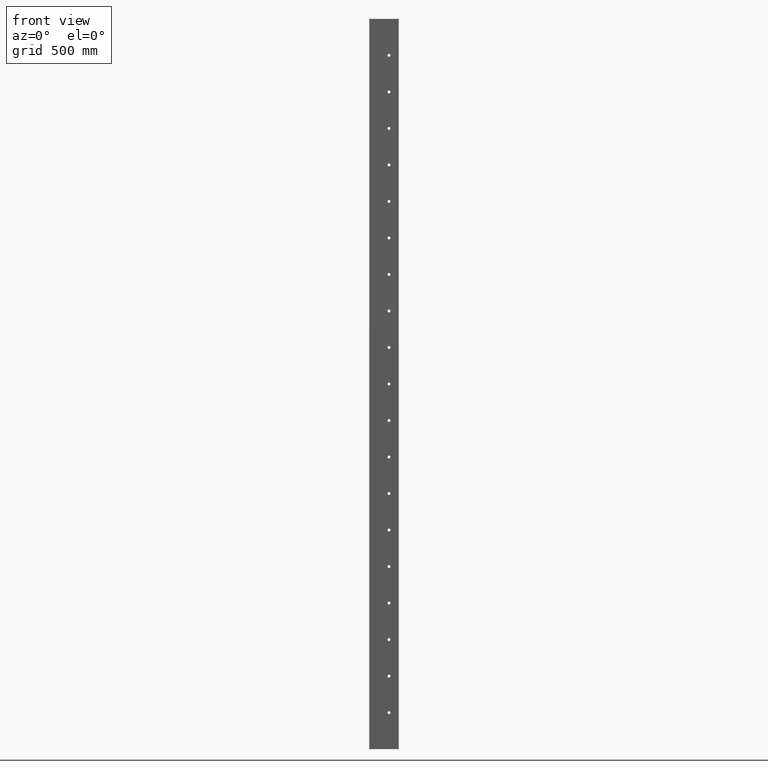
[diagram: clean part render]
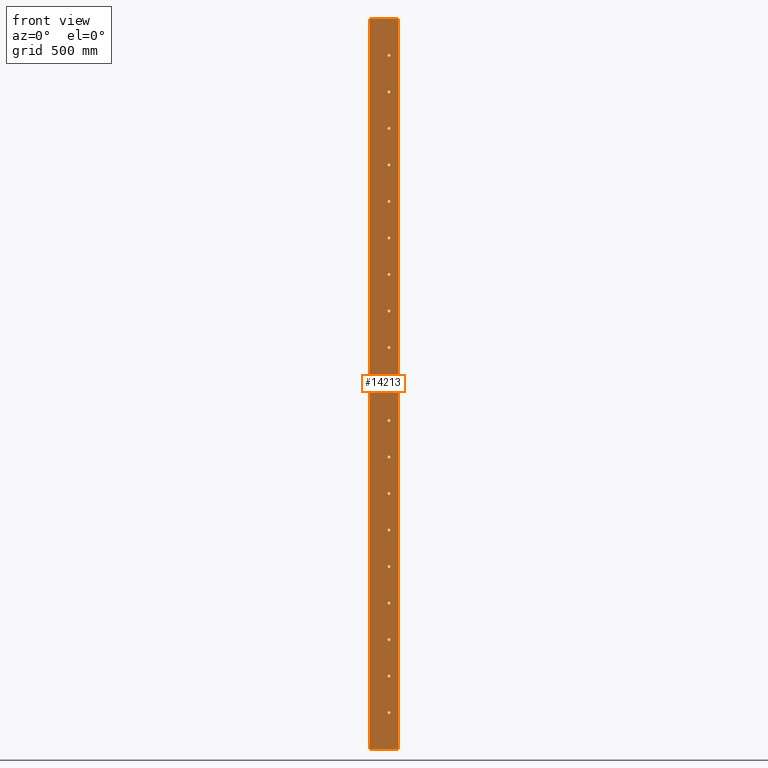
[diagram: same view with one face highlighted and labeled with its STEP entity id]
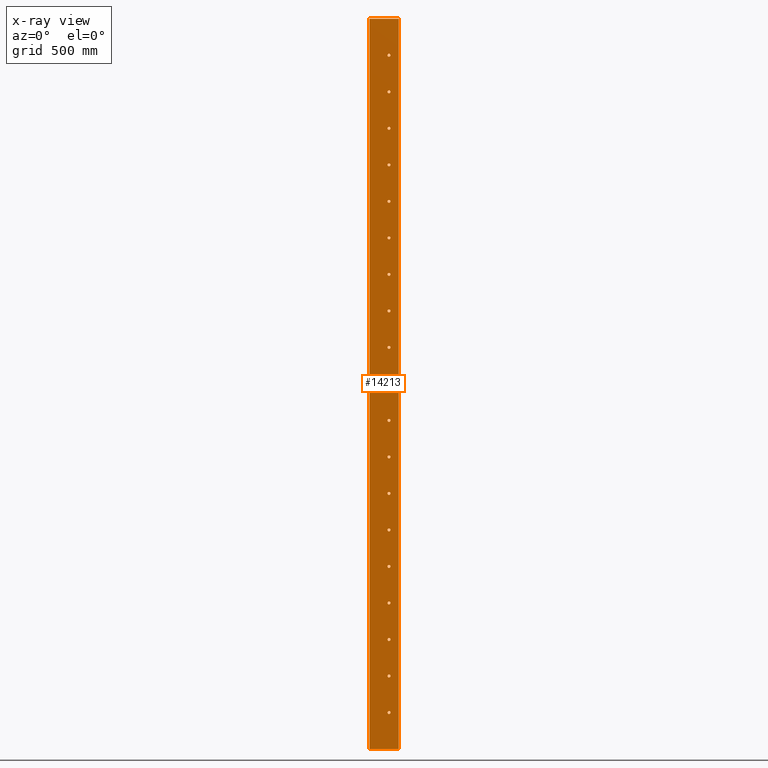
[diagram: x-ray of the same camera — body ghosted, the highlighted face saturated]
A machine part, front view. The second image highlights one B-rep face of the part: STEP entity #14213.
The next image is the same camera in x-ray: the body ghosted, the highlighted face saturated — about 0% of this face is hidden behind the body in this view.
In plain terms, the highlighted planar face has unit normal (0, 1, 0).
Its self-contained STEP definition (entity closure, byte-faithful):
#47 = EDGE_CURVE ( 'NONE', #1314, #12155, #9173, .T. ) ;
#80 = VERTEX_POINT ( 'NONE', #15407 ) ;
#116 = EDGE_CURVE ( 'NONE', #1168, #1479, #6011, .T. ) ;
#131 = CIRCLE ( 'NONE', #11018, 6.000000000000005300 ) ;
#185 = FACE_BOUND ( 'NONE', #13765, .T. ) ;
#226 = VERTEX_POINT ( 'NONE', #15974 ) ;
#237 = VERTEX_POINT ( 'NONE', #1998 ) ;
#263 = VERTEX_POINT ( 'NONE', #3328 ) ;
#287 = VERTEX_POINT ( 'NONE', #7494 ) ;
#321 = VERTEX_POINT ( 'NONE', #10133 ) ;
#392 = ORIENTED_EDGE ( 'NONE', *, *, #12013, .T. ) ;
#400 = ORIENTED_EDGE ( 'NONE', *, *, #14722, .T. ) ;
#474 = CIRCLE ( 'NONE', #12656, 6.000000000000005300 ) ;
#495 = DIRECTION ( 'NONE',  ( -1.951563910473245800E-016, 1.000000000000000000, 0.0000000000000000000 ) ) ;
#512 = CARTESIAN_POINT ( 'NONE',  ( 81.00000000000930800, -6.938893903907228400E-015, 150.0000000000001400 ) ) ;
#604 = FACE_BOUND ( 'NONE', #2857, .T. ) ;
#626 = DIRECTION ( 'NONE',  ( -1.951563910473245800E-016, 1.000000000000000000, 0.0000000000000000000 ) ) ;
#678 = ORIENTED_EDGE ( 'NONE', *, *, #3826, .T. ) ;
#686 = DIRECTION ( 'NONE',  ( -1.000000000000000000, -1.951563910473245800E-016, 0.0000000000000000000 ) ) ;
#794 = CARTESIAN_POINT ( 'NONE',  ( 81.00000000000930800, -6.938893903907228400E-015, 1050.000000000000200 ) ) ;
#856 = CARTESIAN_POINT ( 'NONE',  ( 87.00000000000932200, -5.767955557623279600E-015, 1050.000000000000200 ) ) ;
#859 = ORIENTED_EDGE ( 'NONE', *, *, #6831, .T. ) ;
#895 = VERTEX_POINT ( 'NONE', #15081 ) ;
#943 = VERTEX_POINT ( 'NONE', #11416 ) ;
#975 = ORIENTED_EDGE ( 'NONE', *, *, #4338, .T. ) ;
#991 = CIRCLE ( 'NONE', #4892, 6.000000000000005300 ) ;
#1068 = CIRCLE ( 'NONE', #4488, 6.000000000000005300 ) ;
#1139 = CARTESIAN_POINT ( 'NONE',  ( 87.00000000000932200, -5.767955557623279600E-015, 450.0000000000002800 ) ) ;
#1168 = VERTEX_POINT ( 'NONE', #16112 ) ;
#1186 = VERTEX_POINT ( 'NONE', #6289 ) ;
#1188 = DIRECTION ( 'NONE',  ( -1.951563910473245800E-016, 1.000000000000000000, 0.0000000000000000000 ) ) ;
#1219 = DIRECTION ( 'NONE',  ( -1.951563910473245800E-016, 1.000000000000000000, 0.0000000000000000000 ) ) ;
#1270 = ORIENTED_EDGE ( 'NONE', *, *, #4743, .T. ) ;
#1294 = VERTEX_POINT ( 'NONE', #16354 ) ;
#1303 = CARTESIAN_POINT ( 'NONE',  ( 75.00000000000930800, -8.109832250191177200E-015, 300.0000000000001700 ) ) ;
#1314 = VERTEX_POINT ( 'NONE', #12373 ) ;
#1402 = EDGE_CURVE ( 'NONE', #15537, #9806, #474, .T. ) ;
#1422 = DIRECTION ( 'NONE',  ( -1.000000000000000000, -1.951563910473245800E-016, 0.0000000000000000000 ) ) ;
#1479 = VERTEX_POINT ( 'NONE', #8153 ) ;
#1516 = VERTEX_POINT ( 'NONE', #2099 ) ;
#1517 = DIRECTION ( 'NONE',  ( -1.000000000000000000, -1.951563910473245800E-016, 0.0000000000000000000 ) ) ;
#1519 = EDGE_LOOP ( 'NONE', ( #6557, #3442 ) ) ;
#1562 = DIRECTION ( 'NONE',  ( -1.000000000000000000, -1.951563910473245800E-016, 0.0000000000000000000 ) ) ;
#1605 = CARTESIAN_POINT ( 'NONE',  ( 81.00000000000930800, -6.938893903907228400E-015, -899.9999999999998900 ) ) ;
#1658 = CARTESIAN_POINT ( 'NONE',  ( 81.00000000000930800, -6.938893903907228400E-015, -1349.999999999999500 ) ) ;
#1663 = CIRCLE ( 'NONE', #9534, 6.000000000000005300 ) ;
#1706 = EDGE_CURVE ( 'NONE', #287, #6321, #8150, .T. ) ;
#1887 = ORIENTED_EDGE ( 'NONE', *, *, #6014, .T. ) ;
#1907 = AXIS2_PLACEMENT_3D ( 'NONE', #8089, #4468, #5490 ) ;
#1929 = EDGE_CURVE ( 'NONE', #9806, #15537, #7559, .T. ) ;
#1943 = ORIENTED_EDGE ( 'NONE', *, *, #12320, .T. ) ;
#1976 = DIRECTION ( 'NONE',  ( -1.000000000000000000, -1.951563910473245800E-016, 0.0000000000000000000 ) ) ;
#1998 = CARTESIAN_POINT ( 'NONE',  ( 75.00000000000930800, -8.109832250191177200E-015, -149.9999999999999100 ) ) ;
#2016 = EDGE_CURVE ( 'NONE', #7780, #895, #1068, .T. ) ;
#2039 = EDGE_CURVE ( 'NONE', #237, #1186, #1663, .T. ) ;
#2044 = DIRECTION ( 'NONE',  ( -1.000000000000000000, -1.951563910473245800E-016, 0.0000000000000000000 ) ) ;
#2094 = AXIS2_PLACEMENT_3D ( 'NONE', #10045, #2515, #15106 ) ;
#2099 = CARTESIAN_POINT ( 'NONE',  ( 75.00000000000930800, -8.109832250191177200E-015, 1350.000000000000000 ) ) ;
#2237 = ORIENTED_EDGE ( 'NONE', *, *, #11680, .T. ) ;
#2293 = PLANE ( 'NONE',  #5367 ) ;
#2319 = AXIS2_PLACEMENT_3D ( 'NONE', #13297, #5638, #1976 ) ;
#2320 = CIRCLE ( 'NONE', #6630, 6.000000000000005300 ) ;
#2331 = DIRECTION ( 'NONE',  ( -1.000000000000000000, -1.951563910473245800E-016, 0.0000000000000000000 ) ) ;
#2395 = CARTESIAN_POINT ( 'NONE',  ( 81.00000000000930800, -6.938893903907228400E-015, 300.0000000000001700 ) ) ;
#2408 = CARTESIAN_POINT ( 'NONE',  ( 87.00000000000932200, -5.767955557623279600E-015, 600.0000000000002300 ) ) ;
#2421 = CIRCLE ( 'NONE', #12838, 6.000000000000005300 ) ;
#2456 = EDGE_LOOP ( 'NONE', ( #4965, #678 ) ) ;
#2504 = CIRCLE ( 'NONE', #3787, 6.000000000000005300 ) ;
#2515 = DIRECTION ( 'NONE',  ( -1.951563910473245800E-016, 1.000000000000000000, 0.0000000000000000000 ) ) ;
#2516 = DIRECTION ( 'NONE',  ( -1.000000000000000000, -1.951563910473245800E-016, 0.0000000000000000000 ) ) ;
#2567 = FACE_BOUND ( 'NONE', #13513, .T. ) ;
#2593 = VERTEX_POINT ( 'NONE', #14212 ) ;
#2621 = LINE ( 'NONE', #12762, #15275 ) ;
#2682 = ORIENTED_EDGE ( 'NONE', *, *, #15558, .T. ) ;
#2718 = EDGE_CURVE ( 'NONE', #15535, #7202, #3233, .T. ) ;
#2743 = DIRECTION ( 'NONE',  ( -1.000000000000000000, -1.951563910473245800E-016, 0.0000000000000000000 ) ) ;
#2755 = FACE_BOUND ( 'NONE', #5835, .T. ) ;
#2761 = DIRECTION ( 'NONE',  ( -1.951563910473245800E-016, 1.000000000000000000, 0.0000000000000000000 ) ) ;
#2794 = DIRECTION ( 'NONE',  ( -1.000000000000000000, -1.951563910473245800E-016, 0.0000000000000000000 ) ) ;
#2857 = EDGE_LOOP ( 'NONE', ( #975, #2237 ) ) ;
#2923 = EDGE_LOOP ( 'NONE', ( #7547, #4627 ) ) ;
#2959 = DIRECTION ( 'NONE',  ( -1.000000000000000000, -1.951563910473245800E-016, 0.0000000000000000000 ) ) ;
#2973 = AXIS2_PLACEMENT_3D ( 'NONE', #2395, #1188, #15207 ) ;
#2983 = CARTESIAN_POINT ( 'NONE',  ( 121.0000000000093200, 0.0000000000000000000, 1500.000000000000000 ) ) ;
#3104 = CARTESIAN_POINT ( 'NONE',  ( 75.00000000000930800, -8.109832250191177200E-015, -1199.999999999999800 ) ) ;
#3111 = EDGE_LOOP ( 'NONE', ( #859, #10726 ) ) ;
#3131 = CIRCLE ( 'NONE', #7533, 6.000000000000005300 ) ;
#3139 = AXIS2_PLACEMENT_3D ( 'NONE', #13268, #12142, #9477 ) ;
#3164 = FACE_BOUND ( 'NONE', #9160, .T. ) ;
#3227 = AXIS2_PLACEMENT_3D ( 'NONE', #1605, #10406, #10244 ) ;
#3230 = EDGE_CURVE ( 'NONE', #10313, #1294, #5866, .T. ) ;
#3233 = CIRCLE ( 'NONE', #3227, 6.000000000000005300 ) ;
#3260 = EDGE_LOOP ( 'NONE', ( #7152, #1943 ) ) ;
#3281 = AXIS2_PLACEMENT_3D ( 'NONE', #6909, #13348, #13185 ) ;
#3328 = CARTESIAN_POINT ( 'NONE',  ( 75.00000000000930800, -8.109832250191177200E-015, -599.9999999999998900 ) ) ;
#3375 = DIRECTION ( 'NONE',  ( -1.951563910473245800E-016, 1.000000000000000000, 0.0000000000000000000 ) ) ;
#3392 = DIRECTION ( 'NONE',  ( -1.000000000000000000, -1.951563910473245800E-016, 0.0000000000000000000 ) ) ;
#3442 = ORIENTED_EDGE ( 'NONE', *, *, #10996, .T. ) ;
#3544 = AXIS2_PLACEMENT_3D ( 'NONE', #11560, #10386, #12953 ) ;
#3571 = AXIS2_PLACEMENT_3D ( 'NONE', #794, #3375, #2044 ) ;
#3641 = ORIENTED_EDGE ( 'NONE', *, *, #5761, .T. ) ;
#3648 = DIRECTION ( 'NONE',  ( 1.000000000000000000, 0.0000000000000000000, 0.0000000000000000000 ) ) ;
#3685 = DIRECTION ( 'NONE',  ( -1.000000000000000000, -1.951563910473245800E-016, 0.0000000000000000000 ) ) ;
#3695 = AXIS2_PLACEMENT_3D ( 'NONE', #9429, #14444, #4320 ) ;
#3787 = AXIS2_PLACEMENT_3D ( 'NONE', #14728, #16048, #13468 ) ;
#3802 = CIRCLE ( 'NONE', #6862, 6.000000000000005300 ) ;
#3826 = EDGE_CURVE ( 'NONE', #943, #8446, #6241, .T. ) ;
#3842 = ORIENTED_EDGE ( 'NONE', *, *, #2039, .T. ) ;
#3848 = EDGE_LOOP ( 'NONE', ( #13735, #15611 ) ) ;
#3884 = EDGE_CURVE ( 'NONE', #1479, #1168, #3131, .T. ) ;
#3900 = CARTESIAN_POINT ( 'NONE',  ( 81.00000000000930800, -6.938893903907228400E-015, -149.9999999999999100 ) ) ;
#4065 = DIRECTION ( 'NONE',  ( -1.951563910473245800E-016, 1.000000000000000000, 0.0000000000000000000 ) ) ;
#4083 = DIRECTION ( 'NONE',  ( -1.000000000000000000, -1.951563910473245800E-016, 0.0000000000000000000 ) ) ;
#4097 = CARTESIAN_POINT ( 'NONE',  ( 81.00000000000930800, -6.938893903907228400E-015, 1050.000000000000200 ) ) ;
#4200 = ORIENTED_EDGE ( 'NONE', *, *, #116, .T. ) ;
#4244 = ORIENTED_EDGE ( 'NONE', *, *, #3884, .T. ) ;
#4320 = DIRECTION ( 'NONE',  ( -1.000000000000000000, -1.951563910473245800E-016, 0.0000000000000000000 ) ) ;
#4338 = EDGE_CURVE ( 'NONE', #12470, #15363, #131, .T. ) ;
#4384 = CARTESIAN_POINT ( 'NONE',  ( 87.00000000000932200, -5.767955557623279600E-015, -1199.999999999999800 ) ) ;
#4399 = CIRCLE ( 'NONE', #2973, 6.000000000000005300 ) ;
#4422 = DIRECTION ( 'NONE',  ( -1.951563910473245800E-016, 1.000000000000000000, 0.0000000000000000000 ) ) ;
#4427 = CARTESIAN_POINT ( 'NONE',  ( 75.00000000000930800, -8.109832250191177200E-015, 1050.000000000000200 ) ) ;
#4431 = EDGE_CURVE ( 'NONE', #11425, #9942, #15157, .T. ) ;
#4468 = DIRECTION ( 'NONE',  ( -1.951563910473245800E-016, 1.000000000000000000, 0.0000000000000000000 ) ) ;
#4486 = VERTEX_POINT ( 'NONE', #9842 ) ;
#4488 = AXIS2_PLACEMENT_3D ( 'NONE', #16372, #8935, #1422 ) ;
#4589 = DIRECTION ( 'NONE',  ( -1.951563910473245800E-016, 1.000000000000000000, 0.0000000000000000000 ) ) ;
#4627 = ORIENTED_EDGE ( 'NONE', *, *, #6420, .T. ) ;
#4672 = DIRECTION ( 'NONE',  ( -1.000000000000000000, -1.951563910473245800E-016, 0.0000000000000000000 ) ) ;
#4743 = EDGE_CURVE ( 'NONE', #321, #7046, #991, .T. ) ;
#4799 = CIRCLE ( 'NONE', #11431, 6.000000000000005300 ) ;
#4827 = VERTEX_POINT ( 'NONE', #6731 ) ;
#4892 = AXIS2_PLACEMENT_3D ( 'NONE', #10278, #4065, #2743 ) ;
#4931 = LINE ( 'NONE', #12199, #16025 ) ;
#4965 = ORIENTED_EDGE ( 'NONE', *, *, #8974, .T. ) ;
#5081 = DIRECTION ( 'NONE',  ( -1.951563910473245800E-016, 1.000000000000000000, 0.0000000000000000000 ) ) ;
#5101 = FACE_BOUND ( 'NONE', #3111, .T. ) ;
#5134 = EDGE_CURVE ( 'NONE', #1186, #237, #7587, .T. ) ;
#5136 = CARTESIAN_POINT ( 'NONE',  ( 81.00000000000930800, -6.938893903907228400E-015, -1199.999999999999800 ) ) ;
#5166 = ORIENTED_EDGE ( 'NONE', *, *, #11477, .T. ) ;
#5202 = EDGE_LOOP ( 'NONE', ( #16181, #2682 ) ) ;
#5271 = DIRECTION ( 'NONE',  ( -1.951563910473245800E-016, 1.000000000000000000, 0.0000000000000000000 ) ) ;
#5296 = FACE_BOUND ( 'NONE', #2456, .T. ) ;
#5353 = ORIENTED_EDGE ( 'NONE', *, *, #5134, .T. ) ;
#5367 = AXIS2_PLACEMENT_3D ( 'NONE', #16196, #16249, #8609 ) ;
#5373 = DIRECTION ( 'NONE',  ( -1.000000000000000000, -1.951563910473245800E-016, 0.0000000000000000000 ) ) ;
#5377 = ORIENTED_EDGE ( 'NONE', *, *, #4431, .T. ) ;
#5427 = DIRECTION ( 'NONE',  ( -1.951563910473245800E-016, 1.000000000000000000, 0.0000000000000000000 ) ) ;
#5490 = DIRECTION ( 'NONE',  ( -1.000000000000000000, -1.951563910473245800E-016, 0.0000000000000000000 ) ) ;
#5495 = DIRECTION ( 'NONE',  ( -1.951563910473245800E-016, 1.000000000000000000, 0.0000000000000000000 ) ) ;
#5564 = VERTEX_POINT ( 'NONE', #4427 ) ;
#5610 = EDGE_CURVE ( 'NONE', #5825, #5564, #13530, .T. ) ;
#5612 = AXIS2_PLACEMENT_3D ( 'NONE', #5136, #5081, #2516 ) ;
#5638 = DIRECTION ( 'NONE',  ( -1.951563910473245800E-016, 1.000000000000000000, 0.0000000000000000000 ) ) ;
#5699 = FACE_OUTER_BOUND ( 'NONE', #13473, .T. ) ;
#5761 = EDGE_CURVE ( 'NONE', #7046, #321, #14554, .T. ) ;
#5825 = VERTEX_POINT ( 'NONE', #856 ) ;
#5835 = EDGE_LOOP ( 'NONE', ( #3842, #5353 ) ) ;
#5866 = CIRCLE ( 'NONE', #3544, 6.000000000000005300 ) ;
#5875 = CARTESIAN_POINT ( 'NONE',  ( 75.00000000000930800, -8.109832250191177200E-015, 900.0000000000002300 ) ) ;
#5892 = CIRCLE ( 'NONE', #15562, 6.000000000000005300 ) ;
#6011 = CIRCLE ( 'NONE', #7410, 6.000000000000005300 ) ;
#6014 = EDGE_CURVE ( 'NONE', #895, #7780, #9955, .T. ) ;
#6080 = FACE_BOUND ( 'NONE', #8237, .T. ) ;
#6135 = DIRECTION ( 'NONE',  ( -1.000000000000000000, -1.951563910473245800E-016, 0.0000000000000000000 ) ) ;
#6158 = EDGE_CURVE ( 'NONE', #9942, #11425, #15318, .T. ) ;
#6212 = AXIS2_PLACEMENT_3D ( 'NONE', #6650, #5495, #11681 ) ;
#6241 = CIRCLE ( 'NONE', #11093, 6.000000000000005300 ) ;
#6254 = AXIS2_PLACEMENT_3D ( 'NONE', #14689, #12183, #4672 ) ;
#6289 = CARTESIAN_POINT ( 'NONE',  ( 87.00000000000932200, -5.767955557623279600E-015, -149.9999999999999100 ) ) ;
#6321 = VERTEX_POINT ( 'NONE', #2408 ) ;
#6339 = DIRECTION ( 'NONE',  ( -1.951563910473245800E-016, 1.000000000000000000, 0.0000000000000000000 ) ) ;
#6409 = CIRCLE ( 'NONE', #2319, 6.000000000000005300 ) ;
#6420 = EDGE_CURVE ( 'NONE', #2593, #12460, #7968, .T. ) ;
#6433 = DIRECTION ( 'NONE',  ( -1.000000000000000000, -1.951563910473245800E-016, 0.0000000000000000000 ) ) ;
#6438 = CARTESIAN_POINT ( 'NONE',  ( 75.00000000000930800, -8.109832250191177200E-015, -1349.999999999999500 ) ) ;
#6467 = FACE_BOUND ( 'NONE', #11142, .T. ) ;
#6527 = CARTESIAN_POINT ( 'NONE',  ( 87.00000000000932200, -5.767955557623279600E-015, 300.0000000000001700 ) ) ;
#6557 = ORIENTED_EDGE ( 'NONE', *, *, #9178, .T. ) ;
#6581 = CARTESIAN_POINT ( 'NONE',  ( 81.00000000000930800, -6.938893903907228400E-015, 1200.000000000000200 ) ) ;
#6592 = DIRECTION ( 'NONE',  ( -1.000000000000000000, -1.951563910473245800E-016, 0.0000000000000000000 ) ) ;
#6604 = DIRECTION ( 'NONE',  ( -1.951563910473245800E-016, 1.000000000000000000, 0.0000000000000000000 ) ) ;
#6630 = AXIS2_PLACEMENT_3D ( 'NONE', #6581, #5271, #1562 ) ;
#6634 = DIRECTION ( 'NONE',  ( -1.951563910473245800E-016, 1.000000000000000000, 0.0000000000000000000 ) ) ;
#6638 = CIRCLE ( 'NONE', #2094, 6.000000000000005300 ) ;
#6650 = CARTESIAN_POINT ( 'NONE',  ( 81.00000000000930800, -6.938893903907228400E-015, 2.220446049250313100E-013 ) ) ;
#6660 = DIRECTION ( 'NONE',  ( -0.0000000000000000000, -0.0000000000000000000, -1.000000000000000000 ) ) ;
#6708 = DIRECTION ( 'NONE',  ( -1.000000000000000000, -1.951563910473245800E-016, 0.0000000000000000000 ) ) ;
#6731 = CARTESIAN_POINT ( 'NONE',  ( 75.00000000000930800, -8.109832250191177200E-015, -299.9999999999998300 ) ) ;
#6761 = CARTESIAN_POINT ( 'NONE',  ( 87.00000000000932200, -5.767955557623279600E-015, -899.9999999999998900 ) ) ;
#6831 = EDGE_CURVE ( 'NONE', #5564, #5825, #9550, .T. ) ;
#6862 = AXIS2_PLACEMENT_3D ( 'NONE', #11186, #6339, #3685 ) ;
#6888 = FACE_BOUND ( 'NONE', #3260, .T. ) ;
#6904 = DIRECTION ( 'NONE',  ( -1.951563910473245800E-016, 1.000000000000000000, 0.0000000000000000000 ) ) ;
#6909 = CARTESIAN_POINT ( 'NONE',  ( 81.00000000000930800, -6.938893903907228400E-015, -750.0000000000000000 ) ) ;
#6936 = CARTESIAN_POINT ( 'NONE',  ( 121.0000000000093200, 0.0000000000000000000, -1500.000000000000000 ) ) ;
#6962 = CARTESIAN_POINT ( 'NONE',  ( 87.00000000000932200, -5.767955557623279600E-015, -599.9999999999998900 ) ) ;
#6968 = EDGE_CURVE ( 'NONE', #9051, #263, #4799, .T. ) ;
#7046 = VERTEX_POINT ( 'NONE', #11415 ) ;
#7152 = ORIENTED_EDGE ( 'NONE', *, *, #8197, .T. ) ;
#7202 = VERTEX_POINT ( 'NONE', #8313 ) ;
#7275 = DIRECTION ( 'NONE',  ( -1.000000000000000000, -1.951563910473245800E-016, 0.0000000000000000000 ) ) ;
#7410 = AXIS2_PLACEMENT_3D ( 'NONE', #512, #626, #6708 ) ;
#7417 = ORIENTED_EDGE ( 'NONE', *, *, #15089, .T. ) ;
#7458 = CARTESIAN_POINT ( 'NONE',  ( 87.00000000000932200, -5.767955557623279600E-015, 2.227793930045197400E-013 ) ) ;
#7494 = CARTESIAN_POINT ( 'NONE',  ( 75.00000000000930800, -8.109832250191177200E-015, 600.0000000000002300 ) ) ;
#7533 = AXIS2_PLACEMENT_3D ( 'NONE', #10685, #4422, #14387 ) ;
#7547 = ORIENTED_EDGE ( 'NONE', *, *, #12318, .T. ) ;
#7559 = CIRCLE ( 'NONE', #5612, 6.000000000000005300 ) ;
#7587 = CIRCLE ( 'NONE', #15610, 6.000000000000005300 ) ;
#7649 = AXIS2_PLACEMENT_3D ( 'NONE', #4097, #6604, #15467 ) ;
#7658 = VECTOR ( 'NONE', #10491, 1000.000000000000000 ) ;
#7706 = CIRCLE ( 'NONE', #3695, 6.000000000000005300 ) ;
#7780 = VERTEX_POINT ( 'NONE', #8925 ) ;
#7783 = ORIENTED_EDGE ( 'NONE', *, *, #1929, .T. ) ;
#7816 = EDGE_LOOP ( 'NONE', ( #14805, #10634 ) ) ;
#7828 = DIRECTION ( 'NONE',  ( -1.951563910473245800E-016, 1.000000000000000000, 0.0000000000000000000 ) ) ;
#7868 = AXIS2_PLACEMENT_3D ( 'NONE', #12968, #5427, #15664 ) ;
#7882 = VERTEX_POINT ( 'NONE', #15462 ) ;
#7883 = DIRECTION ( 'NONE',  ( -1.951563910473245800E-016, 1.000000000000000000, 0.0000000000000000000 ) ) ;
#7950 = ORIENTED_EDGE ( 'NONE', *, *, #1402, .T. ) ;
#7968 = CIRCLE ( 'NONE', #14589, 6.000000000000005300 ) ;
#8022 = AXIS2_PLACEMENT_3D ( 'NONE', #1658, #2761, #4083 ) ;
#8031 = CARTESIAN_POINT ( 'NONE',  ( 81.00000000000930800, -6.938893903907228400E-015, 1350.000000000000000 ) ) ;
#8089 = CARTESIAN_POINT ( 'NONE',  ( 81.00000000000930800, -6.938893903907228400E-015, -299.9999999999998300 ) ) ;
#8093 = LINE ( 'NONE', #2983, #9259 ) ;
#8115 = CARTESIAN_POINT ( 'NONE',  ( 81.00000000000930800, -6.938893903907228400E-015, -1349.999999999999500 ) ) ;
#8150 = CIRCLE ( 'NONE', #12351, 6.000000000000005300 ) ;
#8153 = CARTESIAN_POINT ( 'NONE',  ( 87.00000000000932200, -5.767955557623279600E-015, 150.0000000000001400 ) ) ;
#8197 = EDGE_CURVE ( 'NONE', #15861, #11315, #6638, .T. ) ;
#8237 = EDGE_LOOP ( 'NONE', ( #5377, #15732 ) ) ;
#8313 = CARTESIAN_POINT ( 'NONE',  ( 75.00000000000930800, -8.109832250191177200E-015, -899.9999999999998900 ) ) ;
#8366 = CARTESIAN_POINT ( 'NONE',  ( 75.00000000000930800, -8.109832250191177200E-015, -750.0000000000000000 ) ) ;
#8446 = VERTEX_POINT ( 'NONE', #5875 ) ;
#8609 = DIRECTION ( 'NONE',  ( 0.0000000000000000000, -0.0000000000000000000, 1.000000000000000000 ) ) ;
#8664 = DIRECTION ( 'NONE',  ( -1.951563910473245800E-016, 1.000000000000000000, 0.0000000000000000000 ) ) ;
#8676 = ORIENTED_EDGE ( 'NONE', *, *, #12834, .F. ) ;
#8736 = CARTESIAN_POINT ( 'NONE',  ( 81.00000000000930800, -6.938893903907228400E-015, -599.9999999999998900 ) ) ;
#8777 = DIRECTION ( 'NONE',  ( -1.951563910473245800E-016, 1.000000000000000000, 0.0000000000000000000 ) ) ;
#8778 = AXIS2_PLACEMENT_3D ( 'NONE', #14148, #15307, #6592 ) ;
#8789 = EDGE_LOOP ( 'NONE', ( #4200, #4244 ) ) ;
#8823 = ORIENTED_EDGE ( 'NONE', *, *, #12919, .F. ) ;
#8853 = DIRECTION ( 'NONE',  ( -1.951563910473245800E-016, 1.000000000000000000, 0.0000000000000000000 ) ) ;
#8906 = CARTESIAN_POINT ( 'NONE',  ( 81.00000000000930800, -6.938893903907228400E-015, 600.0000000000002300 ) ) ;
#8909 = ORIENTED_EDGE ( 'NONE', *, *, #11072, .T. ) ;
#8925 = CARTESIAN_POINT ( 'NONE',  ( 75.00000000000930800, -8.109832250191177200E-015, -449.9999999999997200 ) ) ;
#8935 = DIRECTION ( 'NONE',  ( -1.951563910473245800E-016, 1.000000000000000000, 0.0000000000000000000 ) ) ;
#8974 = EDGE_CURVE ( 'NONE', #8446, #943, #6409, .T. ) ;
#9034 = CARTESIAN_POINT ( 'NONE',  ( 81.00000000000930800, -6.938893903907228400E-015, -1199.999999999999800 ) ) ;
#9051 = VERTEX_POINT ( 'NONE', #6962 ) ;
#9114 = VERTEX_POINT ( 'NONE', #14889 ) ;
#9160 = EDGE_LOOP ( 'NONE', ( #7950, #7783 ) ) ;
#9173 = CIRCLE ( 'NONE', #8778, 6.000000000000005300 ) ;
#9178 = EDGE_CURVE ( 'NONE', #4827, #7882, #2504, .T. ) ;
#9240 = FACE_BOUND ( 'NONE', #8789, .T. ) ;
#9259 = VECTOR ( 'NONE', #12912, 1000.000000000000000 ) ;
#9287 = DIRECTION ( 'NONE',  ( -1.000000000000000000, -1.951563910473245800E-016, 0.0000000000000000000 ) ) ;
#9361 = EDGE_CURVE ( 'NONE', #1516, #226, #14376, .T. ) ;
#9429 = CARTESIAN_POINT ( 'NONE',  ( 81.00000000000930800, -6.938893903907228400E-015, -1049.999999999999800 ) ) ;
#9477 = DIRECTION ( 'NONE',  ( -1.000000000000000000, -1.951563910473245800E-016, 0.0000000000000000000 ) ) ;
#9534 = AXIS2_PLACEMENT_3D ( 'NONE', #3900, #8777, #2959 ) ;
#9550 = CIRCLE ( 'NONE', #3571, 6.000000000000005300 ) ;
#9806 = VERTEX_POINT ( 'NONE', #4384 ) ;
#9821 = CIRCLE ( 'NONE', #6212, 6.000000000000005300 ) ;
#9842 = CARTESIAN_POINT ( 'NONE',  ( 87.00000000000932200, -5.767955557623279600E-015, -750.0000000000000000 ) ) ;
#9843 = FACE_BOUND ( 'NONE', #7816, .T. ) ;
#9942 = VERTEX_POINT ( 'NONE', #1139 ) ;
#9955 = CIRCLE ( 'NONE', #3139, 6.000000000000005300 ) ;
#10045 = CARTESIAN_POINT ( 'NONE',  ( 81.00000000000930800, -6.938893903907228400E-015, 1200.000000000000200 ) ) ;
#10074 = CARTESIAN_POINT ( 'NONE',  ( 0.0000000000000000000, 0.0000000000000000000, -1500.000000000000000 ) ) ;
#10095 = VERTEX_POINT ( 'NONE', #6936 ) ;
#10133 = CARTESIAN_POINT ( 'NONE',  ( 87.00000000000932200, -5.767955557623279600E-015, 750.0000000000002300 ) ) ;
#10175 = CARTESIAN_POINT ( 'NONE',  ( 81.00000000000930800, -6.938893903907228400E-015, -149.9999999999999100 ) ) ;
#10244 = DIRECTION ( 'NONE',  ( -1.000000000000000000, -1.951563910473245800E-016, 0.0000000000000000000 ) ) ;
#10278 = CARTESIAN_POINT ( 'NONE',  ( 81.00000000000930800, -6.938893903907228400E-015, 750.0000000000002300 ) ) ;
#10313 = VERTEX_POINT ( 'NONE', #7458 ) ;
#10386 = DIRECTION ( 'NONE',  ( -1.951563910473245800E-016, 1.000000000000000000, 0.0000000000000000000 ) ) ;
#10406 = DIRECTION ( 'NONE',  ( -1.951563910473245800E-016, 1.000000000000000000, 0.0000000000000000000 ) ) ;
#10469 = CARTESIAN_POINT ( 'NONE',  ( 81.00000000000930800, -6.938893903907228400E-015, 1350.000000000000000 ) ) ;
#10491 = DIRECTION ( 'NONE',  ( 1.000000000000000000, 0.0000000000000000000, 0.0000000000000000000 ) ) ;
#10567 = EDGE_CURVE ( 'NONE', #12155, #1314, #7706, .T. ) ;
#10608 = CIRCLE ( 'NONE', #11458, 6.000000000000005300 ) ;
#10634 = ORIENTED_EDGE ( 'NONE', *, *, #47, .T. ) ;
#10685 = CARTESIAN_POINT ( 'NONE',  ( 81.00000000000930800, -6.938893903907228400E-015, 150.0000000000001400 ) ) ;
#10726 = ORIENTED_EDGE ( 'NONE', *, *, #5610, .T. ) ;
#10832 = DIRECTION ( 'NONE',  ( -1.951563910473245800E-016, 1.000000000000000000, 0.0000000000000000000 ) ) ;
#10996 = EDGE_CURVE ( 'NONE', #7882, #4827, #14194, .T. ) ;
#11018 = AXIS2_PLACEMENT_3D ( 'NONE', #12916, #14137, #5373 ) ;
#11019 = EDGE_LOOP ( 'NONE', ( #3641, #1270 ) ) ;
#11023 = CARTESIAN_POINT ( 'NONE',  ( 81.00000000000930800, -6.938893903907228400E-015, -899.9999999999998900 ) ) ;
#11035 = CARTESIAN_POINT ( 'NONE',  ( 75.00000000000930800, -8.109832250191177200E-015, 1200.000000000000200 ) ) ;
#11072 = EDGE_CURVE ( 'NONE', #226, #1516, #10608, .T. ) ;
#11093 = AXIS2_PLACEMENT_3D ( 'NONE', #12642, #15632, #2331 ) ;
#11142 = EDGE_LOOP ( 'NONE', ( #5166, #12450 ) ) ;
#11186 = CARTESIAN_POINT ( 'NONE',  ( 81.00000000000930800, -6.938893903907228400E-015, -599.9999999999998900 ) ) ;
#11315 = VERTEX_POINT ( 'NONE', #15177 ) ;
#11373 = LINE ( 'NONE', #14463, #7658 ) ;
#11415 = CARTESIAN_POINT ( 'NONE',  ( 75.00000000000930800, -8.109832250191177200E-015, 750.0000000000002300 ) ) ;
#11416 = CARTESIAN_POINT ( 'NONE',  ( 87.00000000000932200, -5.767955557623279600E-015, 900.0000000000002300 ) ) ;
#11425 = VERTEX_POINT ( 'NONE', #13007 ) ;
#11431 = AXIS2_PLACEMENT_3D ( 'NONE', #8736, #1219, #7275 ) ;
#11458 = AXIS2_PLACEMENT_3D ( 'NONE', #8031, #495, #9287 ) ;
#11477 = EDGE_CURVE ( 'NONE', #13035, #4486, #11536, .T. ) ;
#11536 = CIRCLE ( 'NONE', #3281, 6.000000000000005300 ) ;
#11560 = CARTESIAN_POINT ( 'NONE',  ( 81.00000000000930800, -6.938893903907228400E-015, 2.220446049250313100E-013 ) ) ;
#11611 = AXIS2_PLACEMENT_3D ( 'NONE', #15817, #13105, #686 ) ;
#11680 = EDGE_CURVE ( 'NONE', #15363, #12470, #4399, .T. ) ;
#11681 = DIRECTION ( 'NONE',  ( -1.000000000000000000, -1.951563910473245800E-016, 0.0000000000000000000 ) ) ;
#11763 = EDGE_LOOP ( 'NONE', ( #13481, #1887 ) ) ;
#11792 = FACE_BOUND ( 'NONE', #11763, .T. ) ;
#11801 = EDGE_CURVE ( 'NONE', #4486, #13035, #2421, .T. ) ;
#11847 = EDGE_CURVE ( 'NONE', #9114, #15237, #2621, .T. ) ;
#11895 = ORIENTED_EDGE ( 'NONE', *, *, #6968, .T. ) ;
#12013 = EDGE_CURVE ( 'NONE', #263, #9051, #3802, .T. ) ;
#12142 = DIRECTION ( 'NONE',  ( -1.951563910473245800E-016, 1.000000000000000000, 0.0000000000000000000 ) ) ;
#12155 = VERTEX_POINT ( 'NONE', #14462 ) ;
#12183 = DIRECTION ( 'NONE',  ( -1.951563910473245800E-016, 1.000000000000000000, 0.0000000000000000000 ) ) ;
#12184 = FACE_BOUND ( 'NONE', #12908, .T. ) ;
#12199 = CARTESIAN_POINT ( 'NONE',  ( 0.0000000000000000000, 0.0000000000000000000, 1500.000000000000000 ) ) ;
#12318 = EDGE_CURVE ( 'NONE', #12460, #2593, #12513, .T. ) ;
#12320 = EDGE_CURVE ( 'NONE', #11315, #15861, #2320, .T. ) ;
#12351 = AXIS2_PLACEMENT_3D ( 'NONE', #8906, #8853, #6135 ) ;
#12373 = CARTESIAN_POINT ( 'NONE',  ( 87.00000000000932200, -5.767955557623279600E-015, -1049.999999999999800 ) ) ;
#12388 = ORIENTED_EDGE ( 'NONE', *, *, #11847, .T. ) ;
#12450 = ORIENTED_EDGE ( 'NONE', *, *, #11801, .T. ) ;
#12460 = VERTEX_POINT ( 'NONE', #6438 ) ;
#12470 = VERTEX_POINT ( 'NONE', #1303 ) ;
#12513 = CIRCLE ( 'NONE', #8022, 6.000000000000005300 ) ;
#12642 = CARTESIAN_POINT ( 'NONE',  ( 81.00000000000930800, -6.938893903907228400E-015, 900.0000000000002300 ) ) ;
#12656 = AXIS2_PLACEMENT_3D ( 'NONE', #9034, #7828, #1517 ) ;
#12762 = CARTESIAN_POINT ( 'NONE',  ( 0.0000000000000000000, 0.0000000000000000000, 1500.000000000000000 ) ) ;
#12834 = EDGE_CURVE ( 'NONE', #9114, #80, #4931, .T. ) ;
#12838 = AXIS2_PLACEMENT_3D ( 'NONE', #15459, #7883, #6433 ) ;
#12908 = EDGE_LOOP ( 'NONE', ( #13426, #8909 ) ) ;
#12912 = DIRECTION ( 'NONE',  ( -0.0000000000000000000, -0.0000000000000000000, -1.000000000000000000 ) ) ;
#12916 = CARTESIAN_POINT ( 'NONE',  ( 81.00000000000930800, -6.938893903907228400E-015, 300.0000000000001700 ) ) ;
#12919 = EDGE_CURVE ( 'NONE', #80, #10095, #8093, .T. ) ;
#12953 = DIRECTION ( 'NONE',  ( -1.000000000000000000, -1.951563910473245800E-016, 0.0000000000000000000 ) ) ;
#12968 = CARTESIAN_POINT ( 'NONE',  ( 81.00000000000930800, -6.938893903907228400E-015, 450.0000000000002800 ) ) ;
#13007 = CARTESIAN_POINT ( 'NONE',  ( 75.00000000000930800, -8.109832250191177200E-015, 450.0000000000002800 ) ) ;
#13035 = VERTEX_POINT ( 'NONE', #8366 ) ;
#13105 = DIRECTION ( 'NONE',  ( -1.951563910473245800E-016, 1.000000000000000000, 0.0000000000000000000 ) ) ;
#13185 = DIRECTION ( 'NONE',  ( -1.000000000000000000, -1.951563910473245800E-016, 0.0000000000000000000 ) ) ;
#13234 = DIRECTION ( 'NONE',  ( -1.000000000000000000, -1.951563910473245800E-016, 0.0000000000000000000 ) ) ;
#13268 = CARTESIAN_POINT ( 'NONE',  ( 81.00000000000930800, -6.938893903907228400E-015, -449.9999999999997200 ) ) ;
#13297 = CARTESIAN_POINT ( 'NONE',  ( 81.00000000000930800, -6.938893903907228400E-015, 900.0000000000002300 ) ) ;
#13348 = DIRECTION ( 'NONE',  ( -1.951563910473245800E-016, 1.000000000000000000, 0.0000000000000000000 ) ) ;
#13364 = CIRCLE ( 'NONE', #14634, 6.000000000000005300 ) ;
#13426 = ORIENTED_EDGE ( 'NONE', *, *, #9361, .T. ) ;
#13434 = DIRECTION ( 'NONE',  ( -1.000000000000000000, -1.951563910473245800E-016, 0.0000000000000000000 ) ) ;
#13468 = DIRECTION ( 'NONE',  ( -1.000000000000000000, -1.951563910473245800E-016, 0.0000000000000000000 ) ) ;
#13473 = EDGE_LOOP ( 'NONE', ( #7417, #8823, #8676, #12388 ) ) ;
#13481 = ORIENTED_EDGE ( 'NONE', *, *, #2016, .T. ) ;
#13513 = EDGE_LOOP ( 'NONE', ( #400, #13980 ) ) ;
#13530 = CIRCLE ( 'NONE', #7649, 6.000000000000005300 ) ;
#13735 = ORIENTED_EDGE ( 'NONE', *, *, #14190, .T. ) ;
#13765 = EDGE_LOOP ( 'NONE', ( #392, #11895 ) ) ;
#13980 = ORIENTED_EDGE ( 'NONE', *, *, #3230, .T. ) ;
#14137 = DIRECTION ( 'NONE',  ( -1.951563910473245800E-016, 1.000000000000000000, 0.0000000000000000000 ) ) ;
#14148 = CARTESIAN_POINT ( 'NONE',  ( 81.00000000000930800, -6.938893903907228400E-015, -1049.999999999999800 ) ) ;
#14190 = EDGE_CURVE ( 'NONE', #7202, #15535, #5892, .T. ) ;
#14194 = CIRCLE ( 'NONE', #1907, 6.000000000000005300 ) ;
#14212 = CARTESIAN_POINT ( 'NONE',  ( 87.00000000000932200, -5.767955557623279600E-015, -1349.999999999999500 ) ) ;
#14213 = ADVANCED_FACE ( 'NONE', ( #6888, #12184, #5699, #5101, #5296, #15805, #16016, #6080, #604, #9240, #2567, #2755, #16191, #11792, #185, #6467, #14832, #9843, #3164, #15222 ), #2293, .F. ) ;
#14376 = CIRCLE ( 'NONE', #15864, 6.000000000000005300 ) ;
#14387 = DIRECTION ( 'NONE',  ( -1.000000000000000000, -1.951563910473245800E-016, 0.0000000000000000000 ) ) ;
#14444 = DIRECTION ( 'NONE',  ( -1.951563910473245800E-016, 1.000000000000000000, 0.0000000000000000000 ) ) ;
#14462 = CARTESIAN_POINT ( 'NONE',  ( 75.00000000000930800, -8.109832250191177200E-015, -1049.999999999999800 ) ) ;
#14463 = CARTESIAN_POINT ( 'NONE',  ( 0.0000000000000000000, 0.0000000000000000000, -1500.000000000000000 ) ) ;
#14554 = CIRCLE ( 'NONE', #11611, 6.000000000000005300 ) ;
#14589 = AXIS2_PLACEMENT_3D ( 'NONE', #8115, #6904, #13234 ) ;
#14634 = AXIS2_PLACEMENT_3D ( 'NONE', #16018, #10832, #13434 ) ;
#14689 = CARTESIAN_POINT ( 'NONE',  ( 81.00000000000930800, -6.938893903907228400E-015, 450.0000000000002800 ) ) ;
#14722 = EDGE_CURVE ( 'NONE', #1294, #10313, #9821, .T. ) ;
#14728 = CARTESIAN_POINT ( 'NONE',  ( 81.00000000000930800, -6.938893903907228400E-015, -299.9999999999998300 ) ) ;
#14805 = ORIENTED_EDGE ( 'NONE', *, *, #10567, .T. ) ;
#14832 = FACE_BOUND ( 'NONE', #3848, .T. ) ;
#14889 = CARTESIAN_POINT ( 'NONE',  ( 0.0000000000000000000, 0.0000000000000000000, 1500.000000000000000 ) ) ;
#15002 = DIRECTION ( 'NONE',  ( -1.000000000000000000, -1.951563910473245800E-016, 0.0000000000000000000 ) ) ;
#15081 = CARTESIAN_POINT ( 'NONE',  ( 87.00000000000932200, -5.767955557623279600E-015, -449.9999999999997200 ) ) ;
#15089 = EDGE_CURVE ( 'NONE', #15237, #10095, #11373, .T. ) ;
#15106 = DIRECTION ( 'NONE',  ( -1.000000000000000000, -1.951563910473245800E-016, 0.0000000000000000000 ) ) ;
#15157 = CIRCLE ( 'NONE', #6254, 6.000000000000005300 ) ;
#15177 = CARTESIAN_POINT ( 'NONE',  ( 87.00000000000932200, -5.767955557623279600E-015, 1200.000000000000200 ) ) ;
#15207 = DIRECTION ( 'NONE',  ( -1.000000000000000000, -1.951563910473245800E-016, 0.0000000000000000000 ) ) ;
#15222 = FACE_BOUND ( 'NONE', #2923, .T. ) ;
#15237 = VERTEX_POINT ( 'NONE', #10074 ) ;
#15275 = VECTOR ( 'NONE', #6660, 1000.000000000000000 ) ;
#15307 = DIRECTION ( 'NONE',  ( -1.951563910473245800E-016, 1.000000000000000000, 0.0000000000000000000 ) ) ;
#15318 = CIRCLE ( 'NONE', #7868, 6.000000000000005300 ) ;
#15363 = VERTEX_POINT ( 'NONE', #6527 ) ;
#15407 = CARTESIAN_POINT ( 'NONE',  ( 121.0000000000093200, 0.0000000000000000000, 1500.000000000000000 ) ) ;
#15459 = CARTESIAN_POINT ( 'NONE',  ( 81.00000000000930800, -6.938893903907228400E-015, -750.0000000000000000 ) ) ;
#15462 = CARTESIAN_POINT ( 'NONE',  ( 87.00000000000932200, -5.767955557623279600E-015, -299.9999999999998300 ) ) ;
#15467 = DIRECTION ( 'NONE',  ( -1.000000000000000000, -1.951563910473245800E-016, 0.0000000000000000000 ) ) ;
#15535 = VERTEX_POINT ( 'NONE', #6761 ) ;
#15537 = VERTEX_POINT ( 'NONE', #3104 ) ;
#15558 = EDGE_CURVE ( 'NONE', #6321, #287, #13364, .T. ) ;
#15562 = AXIS2_PLACEMENT_3D ( 'NONE', #11023, #8664, #15002 ) ;
#15610 = AXIS2_PLACEMENT_3D ( 'NONE', #10175, #6634, #2794 ) ;
#15611 = ORIENTED_EDGE ( 'NONE', *, *, #2718, .T. ) ;
#15632 = DIRECTION ( 'NONE',  ( -1.951563910473245800E-016, 1.000000000000000000, 0.0000000000000000000 ) ) ;
#15664 = DIRECTION ( 'NONE',  ( -1.000000000000000000, -1.951563910473245800E-016, 0.0000000000000000000 ) ) ;
#15732 = ORIENTED_EDGE ( 'NONE', *, *, #6158, .T. ) ;
#15805 = FACE_BOUND ( 'NONE', #11019, .T. ) ;
#15817 = CARTESIAN_POINT ( 'NONE',  ( 81.00000000000930800, -6.938893903907228400E-015, 750.0000000000002300 ) ) ;
#15861 = VERTEX_POINT ( 'NONE', #11035 ) ;
#15864 = AXIS2_PLACEMENT_3D ( 'NONE', #10469, #4589, #3392 ) ;
#15974 = CARTESIAN_POINT ( 'NONE',  ( 87.00000000000932200, -5.767955557623279600E-015, 1350.000000000000000 ) ) ;
#16016 = FACE_BOUND ( 'NONE', #5202, .T. ) ;
#16018 = CARTESIAN_POINT ( 'NONE',  ( 81.00000000000930800, -6.938893903907228400E-015, 600.0000000000002300 ) ) ;
#16025 = VECTOR ( 'NONE', #3648, 1000.000000000000000 ) ;
#16048 = DIRECTION ( 'NONE',  ( -1.951563910473245800E-016, 1.000000000000000000, 0.0000000000000000000 ) ) ;
#16112 = CARTESIAN_POINT ( 'NONE',  ( 75.00000000000930800, -8.109832250191177200E-015, 150.0000000000001400 ) ) ;
#16181 = ORIENTED_EDGE ( 'NONE', *, *, #1706, .T. ) ;
#16191 = FACE_BOUND ( 'NONE', #1519, .T. ) ;
#16196 = CARTESIAN_POINT ( 'NONE',  ( 0.0000000000000000000, 0.0000000000000000000, 1500.000000000000000 ) ) ;
#16249 = DIRECTION ( 'NONE',  ( 0.0000000000000000000, 1.000000000000000000, 0.0000000000000000000 ) ) ;
#16354 = CARTESIAN_POINT ( 'NONE',  ( 75.00000000000930800, -8.109832250191177200E-015, 2.220446049250313100E-013 ) ) ;
#16372 = CARTESIAN_POINT ( 'NONE',  ( 81.00000000000930800, -6.938893903907228400E-015, -449.9999999999997200 ) ) ;